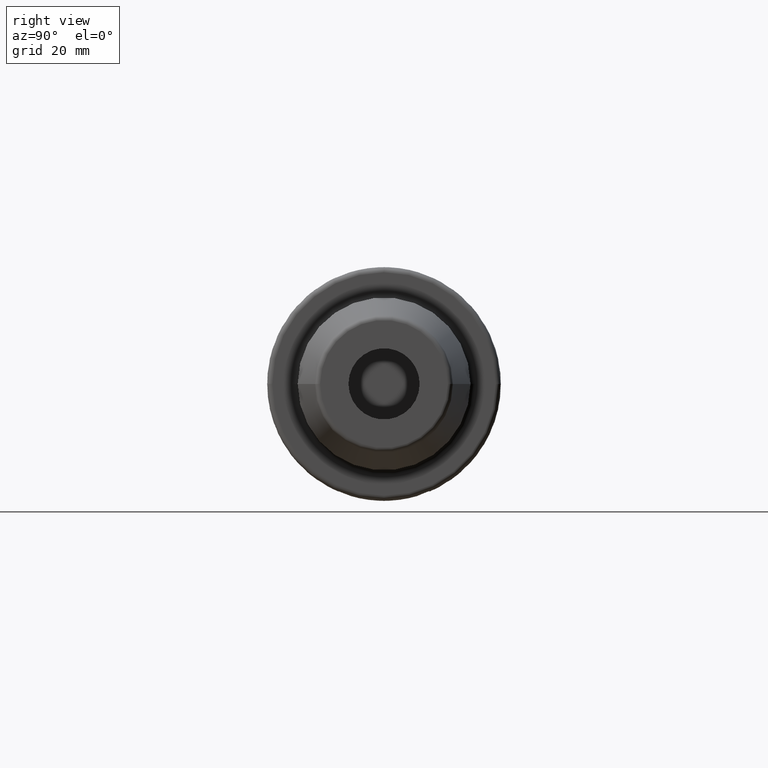
[diagram: clean part render]
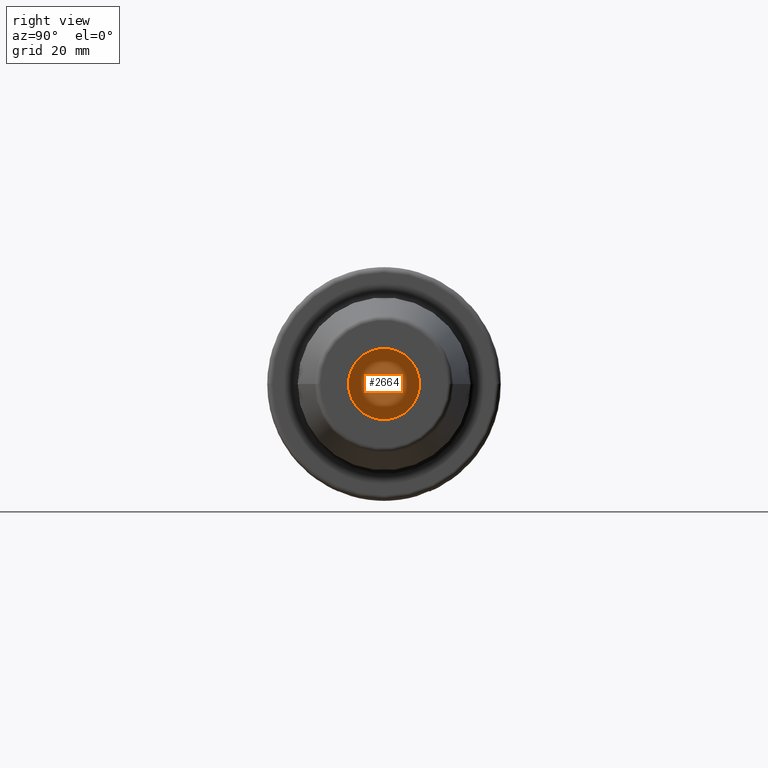
[diagram: same view with one face highlighted and labeled with its STEP entity id]
A machine part, right view. The second image highlights one B-rep face of the part: STEP entity #2664.
In plain terms, the highlighted planar face has unit normal (-1, 0, 0).
Its self-contained STEP definition (entity closure, byte-faithful):
#926=CARTESIAN_POINT('',(3.3E1,0.E0,0.E0));
#927=DIRECTION('',(-1.E0,0.E0,0.E0));
#928=DIRECTION('',(0.E0,-1.E0,0.E0));
#929=AXIS2_PLACEMENT_3D('',#926,#927,#928);
#931=CARTESIAN_POINT('',(3.3E1,0.E0,0.E0));
#932=DIRECTION('',(-1.E0,0.E0,0.E0));
#933=DIRECTION('',(0.E0,1.E0,0.E0));
#934=AXIS2_PLACEMENT_3D('',#931,#932,#933);
#1375=CARTESIAN_POINT('',(3.3E1,-7.E0,0.E0));
#1376=CARTESIAN_POINT('',(3.3E1,7.E0,0.E0));
#1377=VERTEX_POINT('',#1375);
#1378=VERTEX_POINT('',#1376);
#2655=CARTESIAN_POINT('',(3.3E1,0.E0,0.E0));
#2656=DIRECTION('',(-1.E0,0.E0,0.E0));
#2657=DIRECTION('',(0.E0,-1.E0,0.E0));
#2658=AXIS2_PLACEMENT_3D('',#2655,#2656,#2657);
#2659=PLANE('',#2658);
#2660=ORIENTED_EDGE('',*,*,#2635,.T.);
#2661=ORIENTED_EDGE('',*,*,#2649,.T.);
#2662=EDGE_LOOP('',(#2660,#2661));
#2663=FACE_OUTER_BOUND('',#2662,.F.);
#2664=ADVANCED_FACE('',(#2663),#2659,.F.);
#930=CIRCLE('',#929,7.E0);
#935=CIRCLE('',#934,7.E0);
#2635=EDGE_CURVE('',#1377,#1378,#930,.T.);
#2649=EDGE_CURVE('',#1378,#1377,#935,.T.);